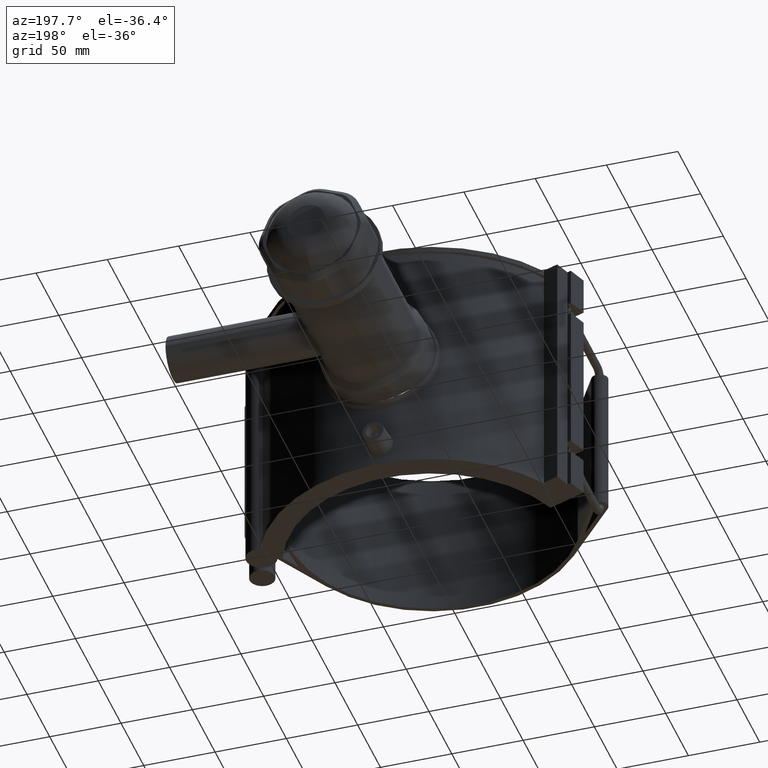
[diagram: clean part render]
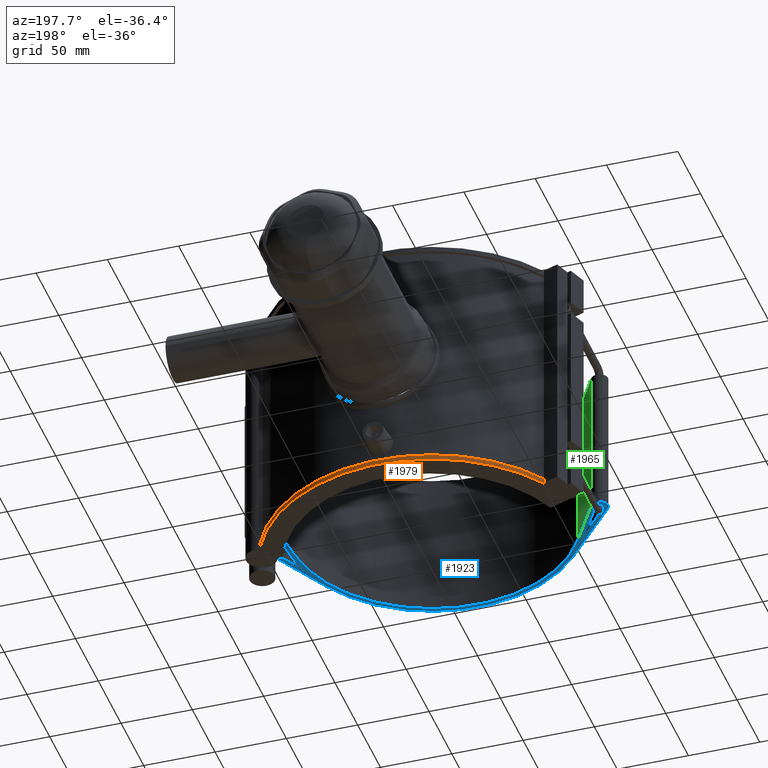
[diagram: same view with three faces highlighted in distinct colors, each labeled with its STEP entity id]
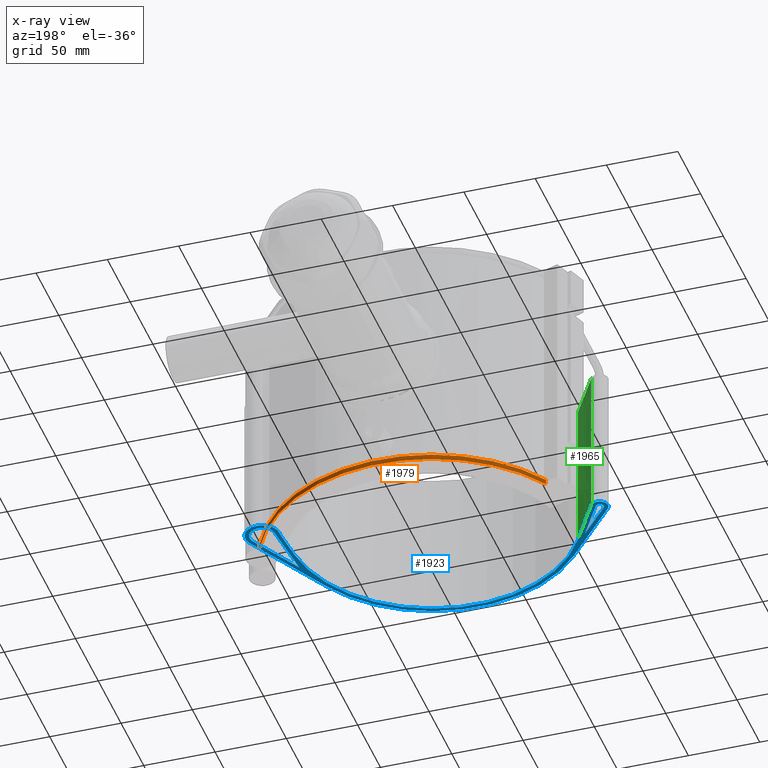
[diagram: x-ray of the same camera — body ghosted, the three highlighted faces saturated]
A machine part, auxiliary view with three faces highlighted in distinct colors.
The next image is the same camera in x-ray (body ghosted, the three faces saturated) — at least one of them is partly hidden behind the body in this view.
Their STEP definitions:

[orange] entity #1979 — the highlighted cylindrical surface (partial cylindrical patch) has radius 116.28 mm, axis along (0, 0, -1).
#167=LINE('',#3535,#328);
#196=LINE('',#3610,#357);
#328=VECTOR('',#2626,3.52);
#357=VECTOR('',#2717,3.52);
#446=CYLINDRICAL_SURFACE('',#2182,116.28);
#558=FACE_OUTER_BOUND('',#707,.T.);
#707=EDGE_LOOP('',(#1769,#1770,#1771,#1772));
#796=CIRCLE('',#2149,116.28);
#807=CIRCLE('',#2183,116.28);
#962=VERTEX_POINT('',#3532);
#963=VERTEX_POINT('',#3534);
#973=VERTEX_POINT('',#3567);
#978=VERTEX_POINT('',#3609);
#1203=EDGE_CURVE('',#963,#962,#167,.T.);
#1220=EDGE_CURVE('',#973,#963,#796,.T.);
#1240=EDGE_CURVE('',#978,#973,#196,.T.);
#1254=EDGE_CURVE('',#962,#978,#807,.T.);
#1769=ORIENTED_EDGE('',*,*,#1203,.T.);
#1770=ORIENTED_EDGE('',*,*,#1254,.T.);
#1771=ORIENTED_EDGE('',*,*,#1240,.T.);
#1772=ORIENTED_EDGE('',*,*,#1220,.T.);
#1979=ADVANCED_FACE('',(#558),#446,.T.);
#2149=AXIS2_PLACEMENT_3D('',#3568,#2658,#2659);
#2182=AXIS2_PLACEMENT_3D('',#3892,#2743,#2744);
#2183=AXIS2_PLACEMENT_3D('',#3893,#2745,#2746);
#2626=DIRECTION('',(0.,0.,1.));
#2658=DIRECTION('center_axis',(0.,0.,1.));
#2659=DIRECTION('ref_axis',(0.976614427290077,0.21499828001376,0.));
#2717=DIRECTION('',(0.,0.,-1.));
#2743=DIRECTION('center_axis',(0.,0.,-1.));
#2744=DIRECTION('ref_axis',(0.976614427290077,0.21499828001376,0.));
#2745=DIRECTION('center_axis',(0.,0.,-1.));
#2746=DIRECTION('ref_axis',(0.976614427290077,0.21499828001376,0.));
#3532=CARTESIAN_POINT('',(-99.2880061968159,60.5221465701692,-84.48));
#3534=CARTESIAN_POINT('',(-99.2880061968159,60.5221465701692,-88.));
#3535=CARTESIAN_POINT('',(-99.2880061968159,60.5221465701692,-88.));
#3567=CARTESIAN_POINT('',(105.179071776369,49.5822675990262,-88.));
#3568=CARTESIAN_POINT('Origin',(0.,0.,-88.));
#3609=CARTESIAN_POINT('',(105.179071776369,49.5822675990263,-84.48));
#3610=CARTESIAN_POINT('',(105.179071776369,49.5822675990262,0.));
#3892=CARTESIAN_POINT('Origin',(0.,0.,-88.));
#3893=CARTESIAN_POINT('Origin',(0.,0.,-84.48));

[blue] entity #1923 — the highlighted planar face has unit normal (0, 0, 1).
#95=LINE('',#3305,#256);
#99=LINE('',#3313,#260);
#102=LINE('',#3324,#263);
#103=LINE('',#3328,#264);
#104=LINE('',#3332,#265);
#105=LINE('',#3336,#266);
#106=LINE('',#3342,#267);
#107=LINE('',#3343,#268);
#256=VECTOR('',#2430,42.3357405477701);
#260=VECTOR('',#2436,42.3357405477701);
#263=VECTOR('',#2445,69.8614012500134);
#264=VECTOR('',#2448,57.6362723718396);
#265=VECTOR('',#2451,39.7006283693455);
#266=VECTOR('',#2454,18.7376487946892);
#267=VECTOR('',#2459,31.6910839622462);
#268=VECTOR('',#2460,31.6910839622462);
#374=FACE_BOUND('',#637,.T.);
#375=FACE_BOUND('',#638,.T.);
#502=FACE_OUTER_BOUND('',#636,.T.);
#636=EDGE_LOOP('',(#1467,#1468,#1469,#1470,#1471,#1472,#1473,#1474,#1475,
#1476));
#637=EDGE_LOOP('',(#1477,#1478,#1479));
#638=EDGE_LOOP('',(#1480,#1481,#1482));
#767=CIRCLE('',#2080,11.8461538461538);
#768=CIRCLE('',#2081,11.8461538461538);
#769=CIRCLE('',#2082,103.);
#770=CIRCLE('',#2083,5.80000000000001);
#771=CIRCLE('',#2084,100.);
#772=CIRCLE('',#2085,100.);
#773=CIRCLE('',#2086,2.8);
#774=CIRCLE('',#2087,8.84615384615381);
#882=VERTEX_POINT('',#3303);
#883=VERTEX_POINT('',#3304);
#886=VERTEX_POINT('',#3312);
#888=VERTEX_POINT('',#3318);
#889=VERTEX_POINT('',#3319);
#890=VERTEX_POINT('',#3321);
#891=VERTEX_POINT('',#3323);
#892=VERTEX_POINT('',#3325);
#893=VERTEX_POINT('',#3327);
#894=VERTEX_POINT('',#3329);
#895=VERTEX_POINT('',#3331);
#896=VERTEX_POINT('',#3333);
#897=VERTEX_POINT('',#3335);
#898=VERTEX_POINT('',#3338);
#899=VERTEX_POINT('',#3339);
#900=VERTEX_POINT('',#3341);
#1095=EDGE_CURVE('',#882,#883,#95,.T.);
#1099=EDGE_CURVE('',#883,#886,#99,.T.);
#1102=EDGE_CURVE('',#888,#889,#767,.T.);
#1103=EDGE_CURVE('',#889,#890,#768,.T.);
#1104=EDGE_CURVE('',#890,#891,#102,.T.);
#1105=EDGE_CURVE('',#891,#892,#769,.T.);
#1106=EDGE_CURVE('',#892,#893,#103,.T.);
#1107=EDGE_CURVE('',#893,#894,#770,.T.);
#1108=EDGE_CURVE('',#894,#895,#104,.T.);
#1109=EDGE_CURVE('',#895,#896,#771,.T.);
#1110=EDGE_CURVE('',#896,#897,#105,.T.);
#1111=EDGE_CURVE('',#888,#897,#772,.T.);
#1112=EDGE_CURVE('',#898,#899,#773,.T.);
#1113=EDGE_CURVE('',#899,#900,#106,.T.);
#1114=EDGE_CURVE('',#900,#898,#107,.T.);
#1115=EDGE_CURVE('',#882,#886,#774,.T.);
#1467=ORIENTED_EDGE('',*,*,#1102,.T.);
#1468=ORIENTED_EDGE('',*,*,#1103,.T.);
#1469=ORIENTED_EDGE('',*,*,#1104,.T.);
#1470=ORIENTED_EDGE('',*,*,#1105,.T.);
#1471=ORIENTED_EDGE('',*,*,#1106,.T.);
#1472=ORIENTED_EDGE('',*,*,#1107,.T.);
#1473=ORIENTED_EDGE('',*,*,#1108,.T.);
#1474=ORIENTED_EDGE('',*,*,#1109,.T.);
#1475=ORIENTED_EDGE('',*,*,#1110,.T.);
#1476=ORIENTED_EDGE('',*,*,#1111,.F.);
#1477=ORIENTED_EDGE('',*,*,#1112,.T.);
#1478=ORIENTED_EDGE('',*,*,#1113,.T.);
#1479=ORIENTED_EDGE('',*,*,#1114,.T.);
#1480=ORIENTED_EDGE('',*,*,#1095,.T.);
#1481=ORIENTED_EDGE('',*,*,#1099,.T.);
#1482=ORIENTED_EDGE('',*,*,#1115,.F.);
#1829=PLANE('',#2079);
#1923=ADVANCED_FACE('',(#502,#374,#375),#1829,.F.);
#2079=AXIS2_PLACEMENT_3D('',#3317,#2439,#2440);
#2080=AXIS2_PLACEMENT_3D('',#3320,#2441,#2442);
#2081=AXIS2_PLACEMENT_3D('',#3322,#2443,#2444);
#2082=AXIS2_PLACEMENT_3D('',#3326,#2446,#2447);
#2083=AXIS2_PLACEMENT_3D('',#3330,#2449,#2450);
#2084=AXIS2_PLACEMENT_3D('',#3334,#2452,#2453);
#2085=AXIS2_PLACEMENT_3D('',#3337,#2455,#2456);
#2086=AXIS2_PLACEMENT_3D('',#3340,#2457,#2458);
#2087=AXIS2_PLACEMENT_3D('',#3344,#2461,#2462);
#2430=DIRECTION('',(-0.0905873526607487,-0.995888513608786,0.));
#2436=DIRECTION('',(0.481783564841131,0.876290246806942,0.));
#2439=DIRECTION('center_axis',(0.,0.,1.));
#2440=DIRECTION('ref_axis',(1.,0.,0.));
#2441=DIRECTION('center_axis',(0.,0.,-1.));
#2442=DIRECTION('ref_axis',(0.333937766224137,-0.942595124265574,0.));
#2443=DIRECTION('center_axis',(0.,0.,-1.));
#2444=DIRECTION('ref_axis',(0.333937766224137,-0.942595124265574,0.));
#2445=DIRECTION('',(-0.48178356484113,-0.876290246806943,0.));
#2446=DIRECTION('center_axis',(0.,0.,-1.));
#2447=DIRECTION('ref_axis',(0.988586012507429,0.150657545030644,0.));
#2448=DIRECTION('',(-0.654222560450905,0.756302083427689,0.));
#2449=DIRECTION('center_axis',(0.,0.,-1.));
#2450=DIRECTION('ref_axis',(-1.,0.,0.));
#2451=DIRECTION('',(0.511479804338621,-0.859295298342617,0.));
#2452=DIRECTION('center_axis',(0.,0.,1.));
#2453=DIRECTION('ref_axis',(0.859295298342617,0.511479804338621,0.));
#2454=DIRECTION('',(0.0905873526607489,0.995888513608786,0.));
#2455=DIRECTION('center_axis',(0.,0.,-1.));
#2456=DIRECTION('ref_axis',(0.998677892414806,-0.0514049336340508,0.));
#2457=DIRECTION('center_axis',(0.,0.,1.));
#2458=DIRECTION('ref_axis',(0.,-1.,0.));
#2459=DIRECTION('',(0.654222560450906,-0.756302083427688,0.));
#2460=DIRECTION('',(-0.511479804338621,0.859295298342617,0.));
#2461=DIRECTION('center_axis',(0.,0.,-1.));
#2462=DIRECTION('ref_axis',(1.,0.,0.));
#3303=CARTESIAN_POINT('',(104.725518277583,18.1037892528259,-52.8));
#3304=CARTESIAN_POINT('',(100.890435618428,-24.05788847382,-52.8));
#3305=CARTESIAN_POINT('',(98.9305788539803,-45.6039297555643,-52.8));
#3312=CARTESIAN_POINT('',(121.287099619722,13.0405080595401,-52.8));
#3313=CARTESIAN_POINT('',(93.0910545803784,-38.2437636956699,-52.8));
#3317=CARTESIAN_POINT('Origin',(9.76503148421383,-59.2176246542159,-52.8));
#3318=CARTESIAN_POINT('',(101.690020868822,17.4462897461497,-52.8));
#3319=CARTESIAN_POINT('',(110.177502823399,28.6627455084343,-52.8));
#3320=CARTESIAN_POINT('Origin',(113.535301282584,17.3024395946731,-52.8));
#3321=CARTESIAN_POINT('',(123.915970360143,11.5951573650167,-52.8));
#3322=CARTESIAN_POINT('Origin',(113.535301282584,17.3024395946731,-52.8));
#3323=CARTESIAN_POINT('',(90.2578954211151,-49.6237071786365,-52.8));
#3324=CARTESIAN_POINT('',(90.2578954211151,-49.6237071786365,-52.8));
#3325=CARTESIAN_POINT('',(-77.8991145930519,-67.3849237264432,-52.8));
#3326=CARTESIAN_POINT('Origin',(0.,0.,-52.8));
#3327=CARTESIAN_POINT('',(-115.606064279003,-23.7944908506153,-52.8));
#3328=CARTESIAN_POINT('',(-115.606064279003,-23.7944908506153,-52.8));
#3329=CARTESIAN_POINT('',(-106.235599464735,-17.033417134836,-52.8));
#3330=CARTESIAN_POINT('Origin',(-111.219512195122,-20.,-52.8));
#3331=CARTESIAN_POINT('',(-85.9295298342617,-51.1479804338621,-52.8));
#3332=CARTESIAN_POINT('',(-85.9295298342617,-51.1479804338621,-52.8));
#3333=CARTESIAN_POINT('',(99.5888513608786,-9.05873526607498,-52.8));
#3334=CARTESIAN_POINT('Origin',(0.,0.,-52.8));
#3335=CARTESIAN_POINT('',(101.286245360276,9.60187394059154,-52.8));
#3336=CARTESIAN_POINT('',(101.824359288265,15.5177271381563,-52.8));
#3337=CARTESIAN_POINT('Origin',(1.69739399939777,18.6606092066664,-52.8));
#3338=CARTESIAN_POINT('',(-108.813485359763,-18.5678565478519,-52.8));
#3339=CARTESIAN_POINT('',(-113.337158028719,-21.8318231692625,-52.8));
#3340=CARTESIAN_POINT('Origin',(-111.219512195122,-20.,-52.8));
#3341=CARTESIAN_POINT('',(-92.6041359354741,-45.7998559959911,-52.8));
#3342=CARTESIAN_POINT('',(-77.7437906351754,-62.9788877055131,-52.8));
#3343=CARTESIAN_POINT('',(-76.265019143956,-73.2498669620689,-52.8));
#3344=CARTESIAN_POINT('Origin',(113.535301282584,17.3024395946731,-52.8));

[green] entity #1965 — the highlighted planar face has unit normal (0.8593, 0.5115, 0).
#104=LINE('',#3332,#265);
#109=LINE('',#3352,#270);
#193=LINE('',#3595,#354);
#194=LINE('',#3596,#355);
#265=VECTOR('',#2451,39.7006283693455);
#270=VECTOR('',#2468,39.7006283693455);
#354=VECTOR('',#2696,105.6);
#355=VECTOR('',#2697,105.6);
#544=FACE_OUTER_BOUND('',#686,.T.);
#686=EDGE_LOOP('',(#1707,#1708,#1709,#1710));
#894=VERTEX_POINT('',#3329);
#895=VERTEX_POINT('',#3331);
#903=VERTEX_POINT('',#3349);
#904=VERTEX_POINT('',#3351);
#1108=EDGE_CURVE('',#894,#895,#104,.T.);
#1118=EDGE_CURVE('',#903,#904,#109,.T.);
#1235=EDGE_CURVE('',#894,#904,#193,.T.);
#1236=EDGE_CURVE('',#895,#903,#194,.T.);
#1707=ORIENTED_EDGE('',*,*,#1235,.T.);
#1708=ORIENTED_EDGE('',*,*,#1118,.F.);
#1709=ORIENTED_EDGE('',*,*,#1236,.F.);
#1710=ORIENTED_EDGE('',*,*,#1108,.F.);
#1861=PLANE('',#2161);
#1965=ADVANCED_FACE('',(#544),#1861,.T.);
#2161=AXIS2_PLACEMENT_3D('',#3594,#2694,#2695);
#2451=DIRECTION('',(0.511479804338621,-0.859295298342617,0.));
#2468=DIRECTION('',(-0.511479804338621,0.859295298342617,0.));
#2694=DIRECTION('center_axis',(0.859295298342616,0.511479804338621,0.));
#2695=DIRECTION('ref_axis',(-0.511479804338621,0.859295298342616,0.));
#2696=DIRECTION('',(0.,0.,1.));
#2697=DIRECTION('',(0.,0.,1.));
#3329=CARTESIAN_POINT('',(-106.235599464735,-17.033417134836,-52.8));
#3331=CARTESIAN_POINT('',(-85.9295298342617,-51.1479804338621,-52.8));
#3332=CARTESIAN_POINT('',(-85.9295298342617,-51.1479804338621,-52.8));
#3349=CARTESIAN_POINT('',(-85.9295298342617,-51.1479804338621,52.8));
#3351=CARTESIAN_POINT('',(-106.235599464735,-17.033417134836,52.8));
#3352=CARTESIAN_POINT('',(-85.9295298342617,-51.1479804338621,52.8));
#3594=CARTESIAN_POINT('Origin',(-85.9295298342617,-51.1479804338621,0.));
#3595=CARTESIAN_POINT('',(-106.235599464735,-17.033417134836,0.));
#3596=CARTESIAN_POINT('',(-85.9295298342617,-51.1479804338621,0.));